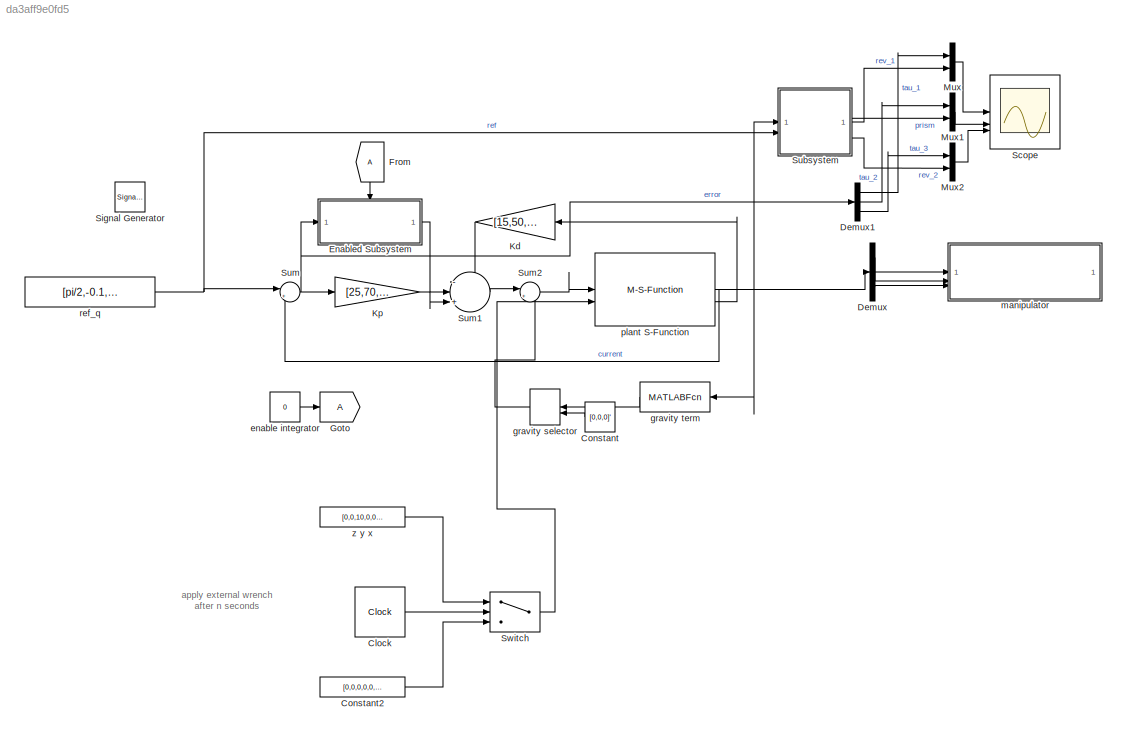
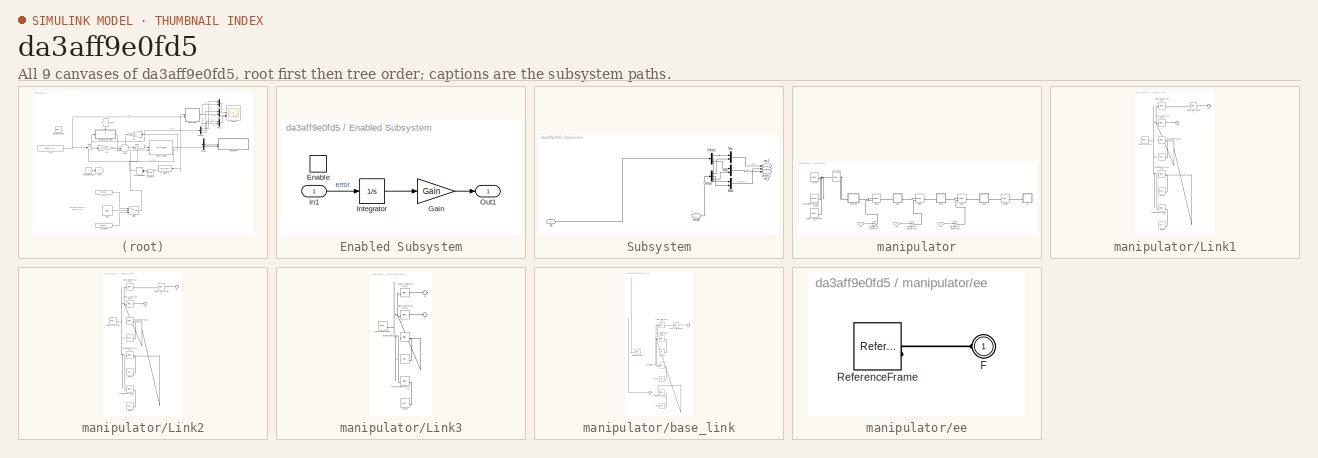
[diagram: thumbnail index - all 9 canvases of the model, root first then tree order]
MODEL slx_da3aff9e0fd5
KIND model
CONFIG AbsTol = auto
CONFIG EnableMultiTasking = off
CONFIG FixedStep = 0.0001
CONFIG MaxStep = 0.1
CONFIG MinStep = auto
CONFIG RelTol = auto
CONFIG SampleTimeConstraint = Unconstrained
CONFIG SolverName = VariableStepAuto
CONFIG StartTime = 0.0
CONFIG StopTime = 10
WORKSPACE source: mxarray member
WORKSPACE Var = 0
BLOCK [Clock] Clock
  DisplayTime = on
BLOCK [Constant] Constant
  NameLocation = top
  Value = [0,0,0]'
BLOCK [Constant] Constant2
  Value = [0,0,0,0,0,0]'
BLOCK [Demux] Demux
  Outputs = 3
BLOCK [Demux] Demux1
  Outputs = 3
BLOCK [SubSystem] Enabled Subsystem
  TreatAsAtomicUnit = on
BLOCK [EnablePort] Enabled Subsystem/Enable
BLOCK [Gain] Enabled Subsystem/Gain
  Gain = Gain
BLOCK [Inport] Enabled Subsystem/In1
BLOCK [Integrator] Enabled Subsystem/Integrator
BLOCK [Outport] Enabled Subsystem/Out1
BLOCK [From] From
  NameLocation = left
BLOCK [Goto] Goto
BLOCK [Gain] Kd
  Gain = [15,50,10]
  NameLocation = top
BLOCK [Gain] Kp
  Gain = [25,70,10]
BLOCK [Mux] Mux
  DisplayOption = bar
  Inputs = 2
BLOCK [Mux] Mux1
  DisplayOption = bar
  Inputs = 2
BLOCK [Mux] Mux2
  DisplayOption = bar
  Inputs = 2
BLOCK [Scope] Scope
  Floating = off
  NumInputPorts = 3
  ScopeSpecificationString = Simulink.scopes.TimeScopeBlockCfg('CurrentConfiguration', extmgr.ConfigurationSet(extmgr.Configuration('Core','General UI',true),extmgr.Configuration('Core','Source UI',true),extmgr.Configuration('Sources','WiredSimulink',true),extmgr.Configuration('Visuals','Time Domain',true,'SerializedDisplays',{struct('MinYLimReal','-0.33672','MaxYLimReal','1.70349','YLabelReal','','MinYLimMag','0.00000','MaxY...<+2900ch>
BLOCK [SignalGenerator] Signal Generator
  Amplitude = [1,0.2,2]
  Frequency = [0.5,1,1]
BLOCK [SubSystem] Subsystem
BLOCK [Demux] Subsystem/Demux1
  Outputs = 3
BLOCK [Demux] Subsystem/Demux2
  Outputs = 3
BLOCK [Mux] Subsystem/Mux
  DisplayOption = bar
  Inputs = 2
BLOCK [Mux] Subsystem/Mux1
  DisplayOption = bar
  Inputs = 2
BLOCK [Mux] Subsystem/Mux2
  DisplayOption = bar
  Inputs = 2
BLOCK [Inport] Subsystem/current
BLOCK [Outport] Subsystem/prism_1
  Port = 2
BLOCK [Inport] Subsystem/ref
  Port = 2
BLOCK [Outport] Subsystem/rev_1
BLOCK [Outport] Subsystem/rev_2
  Port = 3
BLOCK [Sum] Sum
  Inputs = |+-
BLOCK [Sum] Sum1
  Inputs = -|+|+||
BLOCK [Sum] Sum2
  Inputs = |++
BLOCK [Switch] Switch
  Criteria = u2 > Threshold
  InputSameDT = off
  SaturateOnIntegerOverflow = off
  Threshold = 5
BLOCK [Constant] enable integrator
  Value = 0
BLOCK [ManualSwitch] gravity selector
  NameLocation = top
BLOCK [MATLABFcn] gravity term
  MATLABFcn = simrobot.dynamic.grad_U(u(1),u(2),u(3))
  NameLocation = top
  Output1D = off
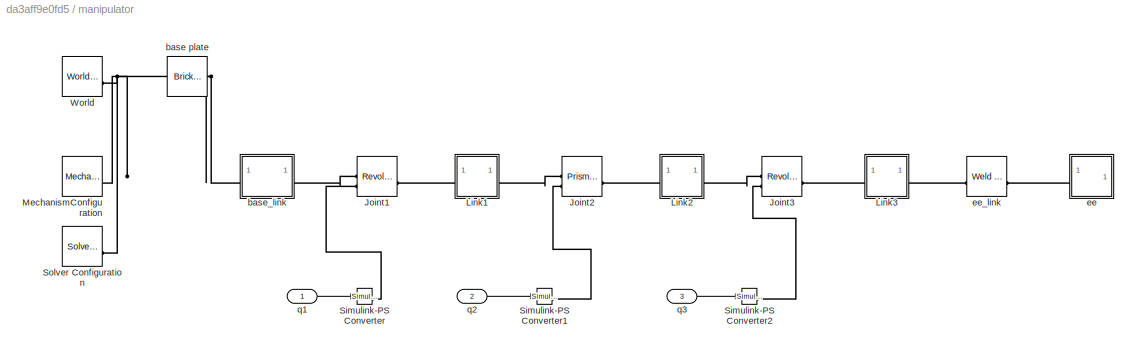
BLOCK [SubSystem] manipulator
BLOCK [Reference] manipulator/Joint1  REF=sm_lib/Joints/Revolute Joint
  SourceBlock = sm_lib/Joints/Revolute Joint
  SourceType = Revolute Joint
BLOCK [Reference] manipulator/Joint2  REF=sm_lib/Joints/Prismatic
Joint
  SourceBlock = sm_lib/Joints/Prismatic\nJoint
  SourceType = Prismatic\nJoint
BLOCK [Reference] manipulator/Joint3  REF=sm_lib/Joints/Revolute Joint
  SourceBlock = sm_lib/Joints/Revolute Joint
  SourceType = Revolute Joint
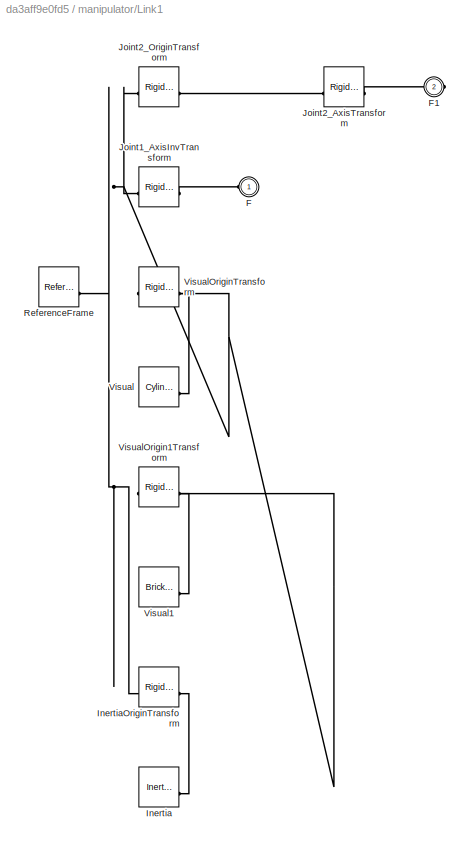
BLOCK [SubSystem] manipulator/Link1
BLOCK [PMIOPort] manipulator/Link1/F
  Side = Left
BLOCK [PMIOPort] manipulator/Link1/F1
  Port = 2
  Side = Right
BLOCK [Reference] manipulator/Link1/Inertia  REF=sm_lib/Body Elements/Inertia
  SourceBlock = sm_lib/Body Elements/Inertia
  SourceType = Inertia
BLOCK [Reference] manipulator/Link1/InertiaOriginTransform  REF=sm_lib/Frames and
Transforms/Rigid
Transform
  SourceBlock = sm_lib/Frames and\nTransforms/Rigid\nTransform
  SourceType = Rigid\nTransform
BLOCK [Reference] manipulator/Link1/Joint1_AxisInvTransform  REF=sm_lib/Frames and
Transforms/Rigid
Transform
  SourceBlock = sm_lib/Frames and\nTransforms/Rigid\nTransform
  SourceType = Rigid\nTransform
BLOCK [Reference] manipulator/Link1/Joint2_AxisTransform  REF=sm_lib/Frames and
Transforms/Rigid
Transform
  SourceBlock = sm_lib/Frames and\nTransforms/Rigid\nTransform
  SourceType = Rigid\nTransform
BLOCK [Reference] manipulator/Link1/Joint2_OriginTransform  REF=sm_lib/Frames and
Transforms/Rigid
Transform
  SourceBlock = sm_lib/Frames and\nTransforms/Rigid\nTransform
  SourceType = Rigid\nTransform
BLOCK [Reference] manipulator/Link1/ReferenceFrame  REF=sm_lib/Frames and
Transforms/Reference
Frame
  SourceBlock = sm_lib/Frames and\nTransforms/Reference\nFrame
  SourceType = Reference\nFrame
BLOCK [Reference] manipulator/Link1/Visual  REF=sm_lib/Body Elements/Cylindrical Solid
  SourceBlock = sm_lib/Body Elements/Cylindrical Solid
  SourceType = Cylindrical Solid
BLOCK [Reference] manipulator/Link1/Visual1  REF=sm_lib/Body Elements/Brick Solid
  SourceBlock = sm_lib/Body Elements/Brick Solid
  SourceType = Brick Solid
BLOCK [Reference] manipulator/Link1/VisualOrigin1Transform  REF=sm_lib/Frames and
Transforms/Rigid
Transform
  SourceBlock = sm_lib/Frames and\nTransforms/Rigid\nTransform
  SourceType = Rigid\nTransform
BLOCK [Reference] manipulator/Link1/VisualOriginTransform  REF=sm_lib/Frames and
Transforms/Rigid
Transform
  SourceBlock = sm_lib/Frames and\nTransforms/Rigid\nTransform
  SourceType = Rigid\nTransform
BLOCK [SubSystem] manipulator/Link2
BLOCK [PMIOPort] manipulator/Link2/F
  Side = Left
BLOCK [PMIOPort] manipulator/Link2/F1
  Port = 2
  Side = Right
BLOCK [Reference] manipulator/Link2/Inertia  REF=sm_lib/Body Elements/Inertia
  SourceBlock = sm_lib/Body Elements/Inertia
  SourceType = Inertia
BLOCK [Reference] manipulator/Link2/InertiaOriginTransform  REF=sm_lib/Frames and
Transforms/Rigid
Transform
  SourceBlock = sm_lib/Frames and\nTransforms/Rigid\nTransform
  SourceType = Rigid\nTransform
BLOCK [Reference] manipulator/Link2/Joint2_AxisInvTransform  REF=sm_lib/Frames and
Transforms/Rigid
Transform
  SourceBlock = sm_lib/Frames and\nTransforms/Rigid\nTransform
  SourceType = Rigid\nTransform
BLOCK [Reference] manipulator/Link2/Joint3_AxisTransform  REF=sm_lib/Frames and
Transforms/Rigid
Transform
  SourceBlock = sm_lib/Frames and\nTransforms/Rigid\nTransform
  SourceType = Rigid\nTransform
BLOCK [Reference] manipulator/Link2/Joint3_OriginTransform  REF=sm_lib/Frames and
Transforms/Rigid
Transform
  SourceBlock = sm_lib/Frames and\nTransforms/Rigid\nTransform
  SourceType = Rigid\nTransform
BLOCK [Reference] manipulator/Link2/ReferenceFrame  REF=sm_lib/Frames and
Transforms/Reference
Frame
  SourceBlock = sm_lib/Frames and\nTransforms/Reference\nFrame
  SourceType = Reference\nFrame
BLOCK [Reference] manipulator/Link2/Visual  REF=sm_lib/Body Elements/Brick Solid
  SourceBlock = sm_lib/Body Elements/Brick Solid
  SourceType = Brick Solid
BLOCK [Reference] manipulator/Link2/Visual1  REF=sm_lib/Body Elements/Cylindrical Solid
  SourceBlock = sm_lib/Body Elements/Cylindrical Solid
  SourceType = Cylindrical Solid
BLOCK [Reference] manipulator/Link2/VisualOrigin1Transform  REF=sm_lib/Frames and
Transforms/Rigid
Transform
  SourceBlock = sm_lib/Frames and\nTransforms/Rigid\nTransform
  SourceType = Rigid\nTransform
BLOCK [Reference] manipulator/Link2/VisualOriginTransform  REF=sm_lib/Frames and
Transforms/Rigid
Transform
  SourceBlock = sm_lib/Frames and\nTransforms/Rigid\nTransform
  SourceType = Rigid\nTransform
BLOCK [SubSystem] manipulator/Link3
BLOCK [PMIOPort] manipulator/Link3/F
  Side = Left
BLOCK [PMIOPort] manipulator/Link3/F1
  Port = 2
  Side = Right
BLOCK [Reference] manipulator/Link3/Inertia  REF=sm_lib/Body Elements/Inertia
  SourceBlock = sm_lib/Body Elements/Inertia
  SourceType = Inertia
BLOCK [Reference] manipulator/Link3/InertiaOriginTransform  REF=sm_lib/Frames and
Transforms/Rigid
Transform
  SourceBlock = sm_lib/Frames and\nTransforms/Rigid\nTransform
  SourceType = Rigid\nTransform
BLOCK [Reference] manipulator/Link3/Joint3_AxisInvTransform  REF=sm_lib/Frames and
Transforms/Rigid
Transform
  SourceBlock = sm_lib/Frames and\nTransforms/Rigid\nTransform
  SourceType = Rigid\nTransform
BLOCK [Reference] manipulator/Link3/ReferenceFrame  REF=sm_lib/Frames and
Transforms/Reference
Frame
  SourceBlock = sm_lib/Frames and\nTransforms/Reference\nFrame
  SourceType = Reference\nFrame
BLOCK [Reference] manipulator/Link3/Visual  REF=sm_lib/Body Elements/Cylindrical Solid
  SourceBlock = sm_lib/Body Elements/Cylindrical Solid
  SourceType = Cylindrical Solid
BLOCK [Reference] manipulator/Link3/VisualOriginTransform  REF=sm_lib/Frames and
Transforms/Rigid
Transform
  SourceBlock = sm_lib/Frames and\nTransforms/Rigid\nTransform
  SourceType = Rigid\nTransform
BLOCK [Reference] manipulator/Link3/ee_link_OriginTransform  REF=sm_lib/Frames and
Transforms/Rigid
Transform
  SourceBlock = sm_lib/Frames and\nTransforms/Rigid\nTransform
  SourceType = Rigid\nTransform
BLOCK [Reference] manipulator/MechanismConfiguration  REF=sm_lib/Utilities/Mechanism
Configuration
  SourceBlock = sm_lib/Utilities/Mechanism\nConfiguration
  SourceType = Mechanism\nConfiguration
BLOCK [Reference] manipulator/Simulink-PS Converter  REF=nesl_utility/Simulink-PS
Converter
  SourceBlock = nesl_utility/Simulink-PS\nConverter
  SourceType = Simulink-PS\nConverter
BLOCK [Reference] manipulator/Simulink-PS Converter1  REF=nesl_utility/Simulink-PS
Converter
  SourceBlock = nesl_utility/Simulink-PS\nConverter
  SourceType = Simulink-PS\nConverter
BLOCK [Reference] manipulator/Simulink-PS Converter2  REF=nesl_utility/Simulink-PS
Converter
  SourceBlock = nesl_utility/Simulink-PS\nConverter
  SourceType = Simulink-PS\nConverter
BLOCK [Reference] manipulator/Solver Configuration  REF=nesl_utility/Solver
Configuration
  SourceBlock = nesl_utility/Solver\nConfiguration
  SourceType = Solver\nConfiguration
BLOCK [Reference] manipulator/World  REF=sm_lib/Frames and
Transforms/World Frame
  SourceBlock = sm_lib/Frames and\nTransforms/World Frame
  SourceType = World Frame
BLOCK [Reference] manipulator/base plate  REF=sm_lib/Body Elements/Brick Solid
  SourceBlock = sm_lib/Body Elements/Brick Solid
  SourceType = Brick Solid
BLOCK [SubSystem] manipulator/base_link
BLOCK [PMIOPort] manipulator/base_link/F
  Side = Left
BLOCK [PMIOPort] manipulator/base_link/F1
  Port = 2
  Side = Right
BLOCK [Reference] manipulator/base_link/Inertia  REF=sm_lib/Body Elements/Inertia
  SourceBlock = sm_lib/Body Elements/Inertia
  SourceType = Inertia
BLOCK [Reference] manipulator/base_link/InertiaOriginTransform  REF=sm_lib/Frames and
Transforms/Rigid
Transform
  SourceBlock = sm_lib/Frames and\nTransforms/Rigid\nTransform
  SourceType = Rigid\nTransform
BLOCK [Reference] manipulator/base_link/Joint1_AxisTransform  REF=sm_lib/Frames and
Transforms/Rigid
Transform
  SourceBlock = sm_lib/Frames and\nTransforms/Rigid\nTransform
  SourceType = Rigid\nTransform
BLOCK [Reference] manipulator/base_link/Joint1_OriginTransform  REF=sm_lib/Frames and
Transforms/Rigid
Transform
  SourceBlock = sm_lib/Frames and\nTransforms/Rigid\nTransform
  SourceType = Rigid\nTransform
BLOCK [Reference] manipulator/base_link/ReferenceFrame  REF=sm_lib/Frames and
Transforms/Reference
Frame
  SourceBlock = sm_lib/Frames and\nTransforms/Reference\nFrame
  SourceType = Reference\nFrame
BLOCK [Reference] manipulator/base_link/Visual  REF=sm_lib/Body Elements/Cylindrical Solid
  SourceBlock = sm_lib/Body Elements/Cylindrical Solid
  SourceType = Cylindrical Solid
BLOCK [Reference] manipulator/base_link/Visual1  REF=sm_lib/Body Elements/Cylindrical Solid
  SourceBlock = sm_lib/Body Elements/Cylindrical Solid
  SourceType = Cylindrical Solid
BLOCK [Reference] manipulator/base_link/VisualOrigin1Transform  REF=sm_lib/Frames and
Transforms/Rigid
Transform
  SourceBlock = sm_lib/Frames and\nTransforms/Rigid\nTransform
  SourceType = Rigid\nTransform
BLOCK [Reference] manipulator/base_link/VisualOriginTransform  REF=sm_lib/Frames and
Transforms/Rigid
Transform
  SourceBlock = sm_lib/Frames and\nTransforms/Rigid\nTransform
  SourceType = Rigid\nTransform
BLOCK [SubSystem] manipulator/ee
BLOCK [PMIOPort] manipulator/ee/F
  Side = Left
BLOCK [Reference] manipulator/ee/ReferenceFrame  REF=sm_lib/Frames and
Transforms/Reference
Frame
  SourceBlock = sm_lib/Frames and\nTransforms/Reference\nFrame
  SourceType = Reference\nFrame
BLOCK [Reference] manipulator/ee_link  REF=sm_lib/Joints/Weld Joint
  SourceBlock = sm_lib/Joints/Weld Joint
  SourceType = Weld Joint
BLOCK [Inport] manipulator/q1
BLOCK [Inport] manipulator/q2
  Port = 2
BLOCK [Inport] manipulator/q3
  Port = 3
BLOCK [M-S-Function] plant S-Function
  FunctionName = robot_s_function
  Parameters = arg_1,arg_2,arg_3
BLOCK [Constant] ref_q
  Value = [pi/2,-0.1,0]
BLOCK [Constant] z y x
  Value = [0,0,10,0,0,5]'
ANNOTATION (root): apply external wrench after n seconds
LINE Clock:1 -> Switch:2
LINE Constant2:1 -> Switch:3
LINE Constant:1 -> gravity selector:2
LINE Demux1:1 -> Mux:1
LINE Demux1:2 -> Mux1:1
LINE Demux1:3 -> Mux2:1
LINE Demux:1 -> manipulator:1
LINE Demux:2 -> manipulator:2
LINE Demux:3 -> manipulator:3
LINE Enabled Subsystem/Gain:1 -> Enabled Subsystem/Out1:1
LINE Enabled Subsystem/In1:1 -> Enabled Subsystem/Integrator:1
LINE Enabled Subsystem/Integrator:1 -> Enabled Subsystem/Gain:1
LINE Enabled Subsystem:1 -> Sum1:2
LINE From:1 -> Enabled Subsystem:enable
LINE Kd:1 -> Sum1:1
LINE Kp:1 -> Sum1:3
LINE Mux1:1 -> Scope:2
LINE Mux2:1 -> Scope:3
LINE Mux:1 -> Scope:1
LINE Subsystem/Demux1:1 -> Subsystem/Mux:1
LINE Subsystem/Demux1:2 -> Subsystem/Mux2:1
LINE Subsystem/Demux1:3 -> Subsystem/Mux1:1
LINE Subsystem/Demux2:1 -> Subsystem/Mux:2
LINE Subsystem/Demux2:2 -> Subsystem/Mux2:2
LINE Subsystem/Demux2:3 -> Subsystem/Mux1:2
LINE Subsystem/Mux1:1 -> Subsystem/rev_2:1
LINE Subsystem/Mux2:1 -> Subsystem/prism_1:1
LINE Subsystem/Mux:1 -> Subsystem/rev_1:1
LINE Subsystem/current:1 -> Subsystem/Demux2:1
LINE Subsystem/ref:1 -> Subsystem/Demux1:1
LINE Subsystem:1 -> Mux:2
LINE Subsystem:2 -> Mux1:2
LINE Subsystem:3 -> Mux2:2
LINE Sum1:1 -> Sum2:1
LINE Sum2:1 -> plant S-Function:1
NET Sum:1 -> Demux1:1, Enabled Subsystem:1, Kp:1
LINE Switch:1 -> plant S-Function:2
LINE enable integrator:1 -> Goto:1
LINE gravity selector:1 -> Sum2:2
LINE gravity term:1 -> gravity selector:1
LINE manipulator/q1:1 -> manipulator/Simulink-PS Converter:1
LINE manipulator/q2:1 -> manipulator/Simulink-PS Converter1:1
LINE manipulator/q3:1 -> manipulator/Simulink-PS Converter2:1
NET plant S-Function:1 -> Demux:1, Subsystem:1, Sum:2, gravity term:1
LINE plant S-Function:2 -> Kd:1
NET ref_q:1 -> Subsystem:2, Sum:1
LINE z y x:1 -> Switch:1
PLINE manipulator/Joint1:LConn1 -- manipulator/base_link:RConn1
PLINE manipulator/Joint1:LConn2 -- manipulator/Simulink-PS Converter:RConn1
PLINE manipulator/Joint1:RConn1 -- manipulator/Link1:LConn1
PLINE manipulator/Joint2:LConn1 -- manipulator/Link1:RConn1
PLINE manipulator/Joint2:LConn2 -- manipulator/Simulink-PS Converter1:RConn1
PLINE manipulator/Joint2:RConn1 -- manipulator/Link2:LConn1
PLINE manipulator/Joint3:LConn1 -- manipulator/Link2:RConn1
PLINE manipulator/Joint3:LConn2 -- manipulator/Simulink-PS Converter2:RConn1
PLINE manipulator/Joint3:RConn1 -- manipulator/Link3:LConn1
PLINE manipulator/Link1/F1:RConn1 -- manipulator/Link1/Joint2_AxisTransform:RConn1
PLINE manipulator/Link1/F:RConn1 -- manipulator/Link1/Joint1_AxisInvTransform:RConn1
PLINE manipulator/Link1/Inertia:RConn1 -- manipulator/Link1/InertiaOriginTransform:RConn1
PNET net1: manipulator/Link1/InertiaOriginTransform:LConn1 -- manipulator/Link1/Joint1_AxisInvTransform:LConn1 -- manipulator/Link1/Joint2_OriginTransform:LConn1 -- manipulator/Link1/ReferenceFrame:RConn1 -- manipulator/Link1/VisualOrigin1Transform:LConn1 -- manipulator/Link1/VisualOriginTransform:LConn1
PLINE manipulator/Link1/Joint2_AxisTransform:LConn1 -- manipulator/Link1/Joint2_OriginTransform:RConn1
PLINE manipulator/Link1/Visual1:RConn1 -- manipulator/Link1/VisualOrigin1Transform:RConn1
PLINE manipulator/Link1/Visual:RConn1 -- manipulator/Link1/VisualOriginTransform:RConn1
PLINE manipulator/Link2/F1:RConn1 -- manipulator/Link2/Joint3_AxisTransform:RConn1
PLINE manipulator/Link2/F:RConn1 -- manipulator/Link2/Joint2_AxisInvTransform:RConn1
PLINE manipulator/Link2/Inertia:RConn1 -- manipulator/Link2/InertiaOriginTransform:RConn1
PNET net2: manipulator/Link2/InertiaOriginTransform:LConn1 -- manipulator/Link2/Joint2_AxisInvTransform:LConn1 -- manipulator/Link2/Joint3_OriginTransform:LConn1 -- manipulator/Link2/ReferenceFrame:RConn1 -- manipulator/Link2/VisualOrigin1Transform:LConn1 -- manipulator/Link2/VisualOriginTransform:LConn1
PLINE manipulator/Link2/Joint3_AxisTransform:LConn1 -- manipulator/Link2/Joint3_OriginTransform:RConn1
PLINE manipulator/Link2/Visual1:RConn1 -- manipulator/Link2/VisualOrigin1Transform:RConn1
PLINE manipulator/Link2/Visual:RConn1 -- manipulator/Link2/VisualOriginTransform:RConn1
PLINE manipulator/Link3/F1:RConn1 -- manipulator/Link3/ee_link_OriginTransform:RConn1
PLINE manipulator/Link3/F:RConn1 -- manipulator/Link3/Joint3_AxisInvTransform:RConn1
PLINE manipulator/Link3/Inertia:RConn1 -- manipulator/Link3/InertiaOriginTransform:RConn1
PNET net3: manipulator/Link3/InertiaOriginTransform:LConn1 -- manipulator/Link3/Joint3_AxisInvTransform:LConn1 -- manipulator/Link3/ReferenceFrame:RConn1 -- manipulator/Link3/VisualOriginTransform:LConn1 -- manipulator/Link3/ee_link_OriginTransform:LConn1
PLINE manipulator/Link3/Visual:RConn1 -- manipulator/Link3/VisualOriginTransform:RConn1
PLINE manipulator/Link3:RConn1 -- manipulator/ee_link:LConn1
PNET net4: manipulator/MechanismConfiguration:RConn1 -- manipulator/Solver Configuration:RConn1 -- manipulator/World:RConn1 -- manipulator/base plate:RConn1 -- manipulator/base_link:LConn1
PLINE manipulator/base_link/F1:RConn1 -- manipulator/base_link/Joint1_AxisTransform:RConn1
PNET net5: manipulator/base_link/F:RConn1 -- manipulator/base_link/InertiaOriginTransform:LConn1 -- manipulator/base_link/Joint1_OriginTransform:LConn1 -- manipulator/base_link/ReferenceFrame:RConn1 -- manipulator/base_link/VisualOrigin1Transform:LConn1 -- manipulator/base_link/VisualOriginTransform:LConn1
PLINE manipulator/base_link/Inertia:RConn1 -- manipulator/base_link/InertiaOriginTransform:RConn1
PLINE manipulator/base_link/Joint1_AxisTransform:LConn1 -- manipulator/base_link/Joint1_OriginTransform:RConn1
PLINE manipulator/base_link/Visual1:RConn1 -- manipulator/base_link/VisualOrigin1Transform:RConn1
PLINE manipulator/base_link/Visual:RConn1 -- manipulator/base_link/VisualOriginTransform:RConn1
PLINE manipulator/ee/F:RConn1 -- manipulator/ee/ReferenceFrame:RConn1
PLINE manipulator/ee:LConn1 -- manipulator/ee_link:RConn1
note: NET lines group one-source signal fan-out (src -> all destinations, sorted); 1:1 wires keep LINE; PNET lines group multi-terminal physical nets as a canonical sorted terminal list (undirected conserving connections); 2-terminal nets keep the pairwise PLINE form
